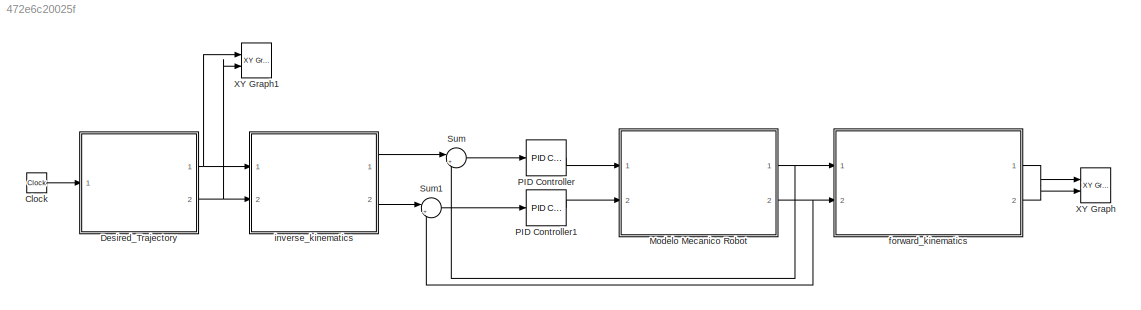
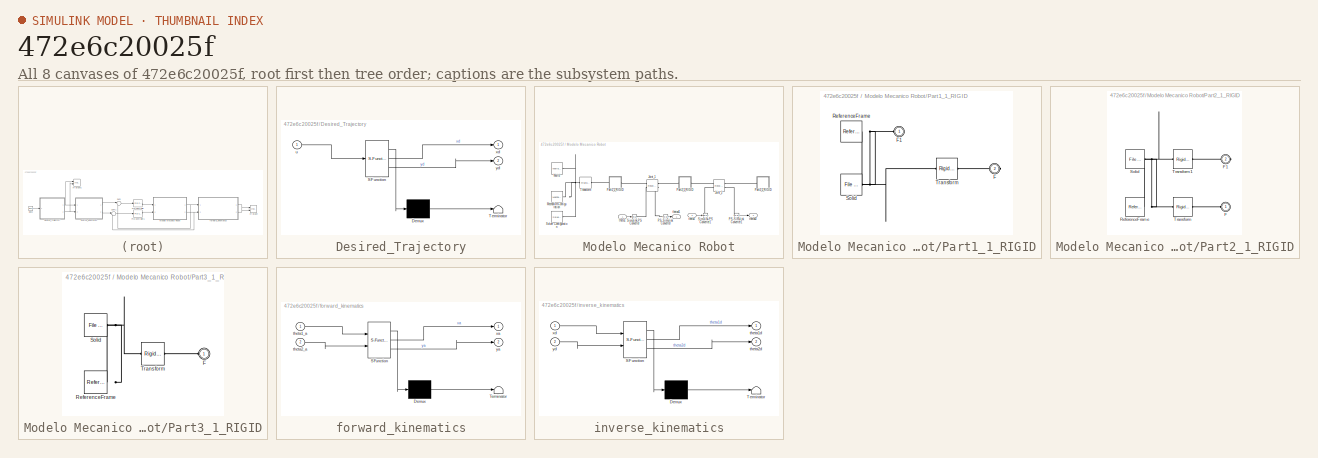
[diagram: thumbnail index - all 8 canvases of the model, root first then tree order]
MODEL slx_472e6c20025f
KIND model
CONFIG AbsTol = auto
CONFIG EnableMultiTasking = off
CONFIG FixedStep = auto
CONFIG MaxStep = auto
CONFIG MinStep = auto
CONFIG RelTol = 1e-3
CONFIG SampleTimeConstraint = Unconstrained
CONFIG SolverName = VariableStepAuto
CONFIG StartTime = 0.0
CONFIG StopTime = 10.0
WORKSPACE source: external: MATLAB File  (data not in archive)
BLOCK [Clock] Clock
BLOCK [SubSystem] Desired_Trajectory
  ErrorFcn = Stateflow.Translate.translate
  PermitHierarchicalResolution = ExplicitOnly
  Ports = [1, 2]
  RequestExecContextInheritance = off
  SFBlockType = MATLAB Function
  TreatAsAtomicUnit = on
BLOCK [Demux] Desired_Trajectory/ Demux 
  Outputs = 1
  Ports = [1, 1]
BLOCK [S-Function] Desired_Trajectory/ SFunction 
  EnableBusSupport = on
  FunctionName = sf_sfun
  PortCounts = [1 3]
  Ports = [1, 3]
  SFcnIsStateOwnerBlock = off
  SFunctionDeploymentMode = off
  Tag = Stateflow S-Function 2
BLOCK [Terminator] Desired_Trajectory/ Terminator 
BLOCK [Inport] Desired_Trajectory/u
BLOCK [Outport] Desired_Trajectory/xd
BLOCK [Outport] Desired_Trajectory/yd
  Port = 2
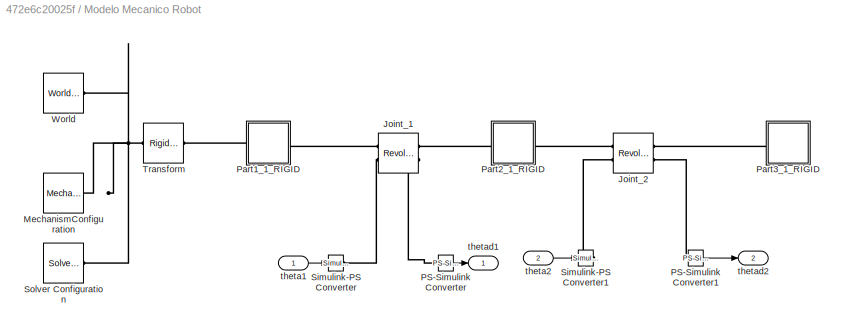
BLOCK [SubSystem] Modelo Mecanico Robot
  Ports = [2, 2]
  RequestExecContextInheritance = off
BLOCK [Reference] Modelo Mecanico Robot/Joint_1  REF=sm_lib/Joints/Revolute Joint
  Ports = [0, 0, 0, 0, 0, 2, 2]
  SourceBlock = sm_lib/Joints/Revolute Joint
  SourceProductBaseCode = MS
  SourceType = Revolute Joint
BLOCK [Reference] Modelo Mecanico Robot/Joint_2  REF=sm_lib/Joints/Revolute Joint
  Ports = [0, 0, 0, 0, 0, 2, 2]
  SourceBlock = sm_lib/Joints/Revolute Joint
  SourceProductBaseCode = MS
  SourceType = Revolute Joint
BLOCK [Reference] Modelo Mecanico Robot/MechanismConfiguration  REF=sm_lib/Utilities/Mechanism
Configuration
  Ports = [0, 0, 0, 0, 0, 0, 1]
  SourceBlock = sm_lib/Utilities/Mechanism\nConfiguration
  SourceProductBaseCode = MS
  SourceType = Mechanism\nConfiguration
BLOCK [Reference] Modelo Mecanico Robot/PS-Simulink Converter  REF=nesl_utility/PS-Simulink
Converter
  Ports = [0, 1, 0, 0, 0, 1]
  SourceBlock = nesl_utility/PS-Simulink\nConverter
  SourceProductBaseCode = PW,SS
  SourceType = PS-Simulink\nConverter
BLOCK [Reference] Modelo Mecanico Robot/PS-Simulink Converter1  REF=nesl_utility/PS-Simulink
Converter
  Ports = [0, 1, 0, 0, 0, 1]
  SourceBlock = nesl_utility/PS-Simulink\nConverter
  SourceProductBaseCode = PW,SS
  SourceType = PS-Simulink\nConverter
BLOCK [SubSystem] Modelo Mecanico Robot/Part1_1_RIGID
  Ports = [0, 0, 0, 0, 0, 1, 1]
  RequestExecContextInheritance = off
BLOCK [PMIOPort] Modelo Mecanico Robot/Part1_1_RIGID/F
  Port = 2
  Side = Right
BLOCK [PMIOPort] Modelo Mecanico Robot/Part1_1_RIGID/F1
  Side = Left
BLOCK [Reference] Modelo Mecanico Robot/Part1_1_RIGID/ReferenceFrame  REF=sm_lib/Frames and
Transforms/Reference
Frame
  Ports = [0, 0, 0, 0, 0, 0, 1]
  SourceBlock = sm_lib/Frames and\nTransforms/Reference\nFrame
  SourceProductBaseCode = MS
  SourceType = Reference\nFrame
BLOCK [Reference] Modelo Mecanico Robot/Part1_1_RIGID/Solid  REF=sm_lib/Body Elements/File Solid
  Ports = [0, 0, 0, 0, 0, 0, 1]
  SourceBlock = sm_lib/Body Elements/File Solid
  SourceProductBaseCode = MS
  SourceType = File Solid
BLOCK [Reference] Modelo Mecanico Robot/Part1_1_RIGID/Transform  REF=sm_lib/Frames and
Transforms/Rigid
Transform
  Ports = [0, 0, 0, 0, 0, 1, 1]
  SourceBlock = sm_lib/Frames and\nTransforms/Rigid\nTransform
  SourceProductBaseCode = MS
  SourceType = Rigid\nTransform
BLOCK [SubSystem] Modelo Mecanico Robot/Part2_1_RIGID
  Ports = [0, 0, 0, 0, 0, 1, 1]
  RequestExecContextInheritance = off
BLOCK [PMIOPort] Modelo Mecanico Robot/Part2_1_RIGID/F
  Side = Left
BLOCK [PMIOPort] Modelo Mecanico Robot/Part2_1_RIGID/F1
  Port = 2
  Side = Right
BLOCK [Reference] Modelo Mecanico Robot/Part2_1_RIGID/ReferenceFrame  REF=sm_lib/Frames and
Transforms/Reference
Frame
  Ports = [0, 0, 0, 0, 0, 0, 1]
  SourceBlock = sm_lib/Frames and\nTransforms/Reference\nFrame
  SourceProductBaseCode = MS
  SourceType = Reference\nFrame
BLOCK [Reference] Modelo Mecanico Robot/Part2_1_RIGID/Solid  REF=sm_lib/Body Elements/File Solid
  Ports = [0, 0, 0, 0, 0, 0, 1]
  SourceBlock = sm_lib/Body Elements/File Solid
  SourceProductBaseCode = MS
  SourceType = File Solid
BLOCK [Reference] Modelo Mecanico Robot/Part2_1_RIGID/Transform  REF=sm_lib/Frames and
Transforms/Rigid
Transform
  Ports = [0, 0, 0, 0, 0, 1, 1]
  SourceBlock = sm_lib/Frames and\nTransforms/Rigid\nTransform
  SourceProductBaseCode = MS
  SourceType = Rigid\nTransform
BLOCK [Reference] Modelo Mecanico Robot/Part2_1_RIGID/Transform1  REF=sm_lib/Frames and
Transforms/Rigid
Transform
  Ports = [0, 0, 0, 0, 0, 1, 1]
  SourceBlock = sm_lib/Frames and\nTransforms/Rigid\nTransform
  SourceProductBaseCode = MS
  SourceType = Rigid\nTransform
BLOCK [SubSystem] Modelo Mecanico Robot/Part3_1_RIGID
  Ports = [0, 0, 0, 0, 0, 1]
  RequestExecContextInheritance = off
BLOCK [PMIOPort] Modelo Mecanico Robot/Part3_1_RIGID/F
  Side = Left
BLOCK [Reference] Modelo Mecanico Robot/Part3_1_RIGID/ReferenceFrame  REF=sm_lib/Frames and
Transforms/Reference
Frame
  Ports = [0, 0, 0, 0, 0, 0, 1]
  SourceBlock = sm_lib/Frames and\nTransforms/Reference\nFrame
  SourceProductBaseCode = MS
  SourceType = Reference\nFrame
BLOCK [Reference] Modelo Mecanico Robot/Part3_1_RIGID/Solid  REF=sm_lib/Body Elements/File Solid
  Ports = [0, 0, 0, 0, 0, 0, 1]
  SourceBlock = sm_lib/Body Elements/File Solid
  SourceProductBaseCode = MS
  SourceType = File Solid
BLOCK [Reference] Modelo Mecanico Robot/Part3_1_RIGID/Transform  REF=sm_lib/Frames and
Transforms/Rigid
Transform
  Ports = [0, 0, 0, 0, 0, 1, 1]
  SourceBlock = sm_lib/Frames and\nTransforms/Rigid\nTransform
  SourceProductBaseCode = MS
  SourceType = Rigid\nTransform
BLOCK [Reference] Modelo Mecanico Robot/Simulink-PS Converter  REF=nesl_utility/Simulink-PS
Converter
  Ports = [1, 0, 0, 0, 0, 0, 1]
  SourceBlock = nesl_utility/Simulink-PS\nConverter
  SourceProductBaseCode = PW,SS
  SourceType = Simulink-PS\nConverter
BLOCK [Reference] Modelo Mecanico Robot/Simulink-PS Converter1  REF=nesl_utility/Simulink-PS
Converter
  Ports = [1, 0, 0, 0, 0, 0, 1]
  SourceBlock = nesl_utility/Simulink-PS\nConverter
  SourceProductBaseCode = PW,SS
  SourceType = Simulink-PS\nConverter
BLOCK [Reference] Modelo Mecanico Robot/Solver Configuration  REF=nesl_utility/Solver
Configuration
  Ports = [0, 0, 0, 0, 0, 0, 1]
  SourceBlock = nesl_utility/Solver\nConfiguration
  SourceProductBaseCode = PW,SS
  SourceType = Solver\nConfiguration
BLOCK [Reference] Modelo Mecanico Robot/Transform  REF=sm_lib/Frames and
Transforms/Rigid
Transform
  Ports = [0, 0, 0, 0, 0, 1, 1]
  SourceBlock = sm_lib/Frames and\nTransforms/Rigid\nTransform
  SourceProductBaseCode = MS
  SourceType = Rigid\nTransform
BLOCK [Reference] Modelo Mecanico Robot/World  REF=sm_lib/Frames and
Transforms/World Frame
  Ports = [0, 0, 0, 0, 0, 0, 1]
  SourceBlock = sm_lib/Frames and\nTransforms/World Frame
  SourceProductBaseCode = MS
  SourceType = World Frame
BLOCK [Inport] Modelo Mecanico Robot/theta1
BLOCK [Inport] Modelo Mecanico Robot/theta2
  Port = 2
BLOCK [Outport] Modelo Mecanico Robot/thetad1
BLOCK [Outport] Modelo Mecanico Robot/thetad2
  Port = 2
BLOCK [Reference] PID Controller  REF=pid_lib/PID Controller
  Ports = [1, 1]
  SourceBlock = pid_lib/PID Controller
  SourceProductBaseCode = SL
  SourceType = PID 1dof
BLOCK [Reference] PID Controller1  REF=pid_lib/PID Controller
  Ports = [1, 1]
  SourceBlock = pid_lib/PID Controller
  SourceProductBaseCode = SL
  SourceType = PID 1dof
BLOCK [Sum] Sum
  Inputs = |+-
  Ports = [2, 1]
BLOCK [Sum] Sum1
  Inputs = |+-
  Ports = [2, 1]
BLOCK [Reference] XY Graph  REF=simulink/Sinks/XY Graph
  Ports = [2]
  SourceBlock = simulink/Sinks/XY Graph
  SourceProductBaseCode = SL
  SourceType = XY scope.
BLOCK [Reference] XY Graph1  REF=simulink/Sinks/XY Graph
  Ports = [2]
  SourceBlock = simulink/Sinks/XY Graph
  SourceProductBaseCode = SL
  SourceType = XY scope.
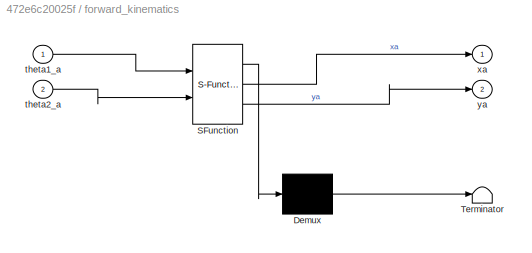
BLOCK [SubSystem] forward_kinematics
  ErrorFcn = Stateflow.Translate.translate
  PermitHierarchicalResolution = ExplicitOnly
  Ports = [2, 2]
  RequestExecContextInheritance = off
  SFBlockType = MATLAB Function
  TreatAsAtomicUnit = on
BLOCK [Demux] forward_kinematics/ Demux 
  Outputs = 1
  Ports = [1, 1]
BLOCK [S-Function] forward_kinematics/ SFunction 
  EnableBusSupport = on
  FunctionName = sf_sfun
  PortCounts = [2 3]
  Ports = [2, 3]
  SFcnIsStateOwnerBlock = off
  SFunctionDeploymentMode = off
  Tag = Stateflow S-Function 3
BLOCK [Terminator] forward_kinematics/ Terminator 
BLOCK [Inport] forward_kinematics/theta1_a
BLOCK [Inport] forward_kinematics/theta2_a
  Port = 2
BLOCK [Outport] forward_kinematics/xa
BLOCK [Outport] forward_kinematics/ya
  Port = 2
BLOCK [SubSystem] inverse_kinematics
  ErrorFcn = Stateflow.Translate.translate
  PermitHierarchicalResolution = ExplicitOnly
  Ports = [2, 2]
  RequestExecContextInheritance = off
  SFBlockType = MATLAB Function
  TreatAsAtomicUnit = on
BLOCK [Demux] inverse_kinematics/ Demux 
  Outputs = 1
  Ports = [1, 1]
BLOCK [S-Function] inverse_kinematics/ SFunction 
  EnableBusSupport = on
  FunctionName = sf_sfun
  PortCounts = [2 3]
  Ports = [2, 3]
  SFcnIsStateOwnerBlock = off
  SFunctionDeploymentMode = off
  Tag = Stateflow S-Function 1
BLOCK [Terminator] inverse_kinematics/ Terminator 
BLOCK [Outport] inverse_kinematics/theta1d
BLOCK [Outport] inverse_kinematics/theta2d
  Port = 2
BLOCK [Inport] inverse_kinematics/xd
BLOCK [Inport] inverse_kinematics/yd
  Port = 2
LINE Clock:1 -> Desired_Trajectory:1
NET Desired_Trajectory:1 -> XY Graph1:1, inverse_kinematics:1
NET Desired_Trajectory:2 -> XY Graph1:2, inverse_kinematics:2
LINE Modelo Mecanico Robot/PS-Simulink Converter1:1 -> Modelo Mecanico Robot/thetad2:1
LINE Modelo Mecanico Robot/PS-Simulink Converter:1 -> Modelo Mecanico Robot/thetad1:1
LINE Modelo Mecanico Robot/theta1:1 -> Modelo Mecanico Robot/Simulink-PS Converter:1
LINE Modelo Mecanico Robot/theta2:1 -> Modelo Mecanico Robot/Simulink-PS Converter1:1
NET Modelo Mecanico Robot:1 -> Sum:2, forward_kinematics:1
NET Modelo Mecanico Robot:2 -> Sum1:2, forward_kinematics:2
LINE PID Controller1:1 -> Modelo Mecanico Robot:2
LINE PID Controller:1 -> Modelo Mecanico Robot:1
LINE Sum1:1 -> PID Controller1:1
LINE Sum:1 -> PID Controller:1
LINE forward_kinematics:1 -> XY Graph:1
LINE forward_kinematics:2 -> XY Graph:2
LINE inverse_kinematics:1 -> Sum:1
LINE inverse_kinematics:2 -> Sum1:1
PLINE Modelo Mecanico Robot/Joint_1:LConn1 -- Modelo Mecanico Robot/Part1_1_RIGID:RConn1
PLINE Modelo Mecanico Robot/Joint_1:LConn2 -- Modelo Mecanico Robot/Simulink-PS Converter:RConn1
PLINE Modelo Mecanico Robot/Joint_1:RConn1 -- Modelo Mecanico Robot/Part2_1_RIGID:LConn1
PLINE Modelo Mecanico Robot/Joint_1:RConn2 -- Modelo Mecanico Robot/PS-Simulink Converter:LConn1
PLINE Modelo Mecanico Robot/Joint_2:LConn1 -- Modelo Mecanico Robot/Part2_1_RIGID:RConn1
PLINE Modelo Mecanico Robot/Joint_2:LConn2 -- Modelo Mecanico Robot/Simulink-PS Converter1:RConn1
PLINE Modelo Mecanico Robot/Joint_2:RConn1 -- Modelo Mecanico Robot/Part3_1_RIGID:LConn1
PLINE Modelo Mecanico Robot/Joint_2:RConn2 -- Modelo Mecanico Robot/PS-Simulink Converter1:LConn1
PNET net1: Modelo Mecanico Robot/MechanismConfiguration:RConn1 -- Modelo Mecanico Robot/Solver Configuration:RConn1 -- Modelo Mecanico Robot/Transform:LConn1 -- Modelo Mecanico Robot/World:RConn1
PNET net2: Modelo Mecanico Robot/Part1_1_RIGID/F1:RConn1 -- Modelo Mecanico Robot/Part1_1_RIGID/ReferenceFrame:RConn1 -- Modelo Mecanico Robot/Part1_1_RIGID/Solid:RConn1 -- Modelo Mecanico Robot/Part1_1_RIGID/Transform:LConn1
PLINE Modelo Mecanico Robot/Part1_1_RIGID/F:RConn1 -- Modelo Mecanico Robot/Part1_1_RIGID/Transform:RConn1
PLINE Modelo Mecanico Robot/Part1_1_RIGID:LConn1 -- Modelo Mecanico Robot/Transform:RConn1
PLINE Modelo Mecanico Robot/Part2_1_RIGID/F1:RConn1 -- Modelo Mecanico Robot/Part2_1_RIGID/Transform1:RConn1
PLINE Modelo Mecanico Robot/Part2_1_RIGID/F:RConn1 -- Modelo Mecanico Robot/Part2_1_RIGID/Transform:RConn1
PNET net3: Modelo Mecanico Robot/Part2_1_RIGID/ReferenceFrame:RConn1 -- Modelo Mecanico Robot/Part2_1_RIGID/Solid:RConn1 -- Modelo Mecanico Robot/Part2_1_RIGID/Transform1:LConn1 -- Modelo Mecanico Robot/Part2_1_RIGID/Transform:LConn1
PLINE Modelo Mecanico Robot/Part3_1_RIGID/F:RConn1 -- Modelo Mecanico Robot/Part3_1_RIGID/Transform:RConn1
PNET net4: Modelo Mecanico Robot/Part3_1_RIGID/ReferenceFrame:RConn1 -- Modelo Mecanico Robot/Part3_1_RIGID/Solid:RConn1 -- Modelo Mecanico Robot/Part3_1_RIGID/Transform:LConn1
note: NET lines group one-source signal fan-out (src -> all destinations, sorted); 1:1 wires keep LINE; PNET lines group multi-terminal physical nets as a canonical sorted terminal list (undirected conserving connections); 2-terminal nets keep the pairwise PLINE form
CHART Desired_Trajectory states=1 transitions=1
  STATE_LABEL 'eML_blk_kernel()'
  STATE_LABEL 'SCRIPT:\nfunction [xd,yd] = Desired_Trajectory(u)\n\nxd=1+0.5*sin((2*pi/5)*u+pi/2);\nyd=1+0.5*cos((2*pi/5)*u+pi/2);    \n'
CHART forward_kinematics states=1 transitions=1
  STATE_LABEL 'eML_blk_kernel()'
  STATE_LABEL 'SCRIPT:\nfunction [xa,ya] = forward_kinematics(theta1_a,theta2_a)\nl1=1;\nl2=1;\nxa=l1*cos(theta1_a)+l2*cos(theta1_a+theta2_a);\nya=l1*sin(theta1_a)+l2*sin(theta1_a+theta2_a);'
CHART inverse_kinematics states=1 transitions=1
  STATE_LABEL 'eML_blk_kernel()'
  STATE_LABEL 'SCRIPT:\nfunction [theta1d,theta2d] = inverse_kinematics(xd,yd)\nl1=1;\nl2=1;\ntheta2d=acos((xd^2+yd^2-l1^2-l2^2)/(2*l1*l2));\ntheta1d=atan(yd/xd)-atan((l2*sin(theta2d))/(l1 + l2*cos(theta2d)));\n'
CHART  states=0 transitions=0
CHART  states=0 transitions=0
CHART  states=0 transitions=0
